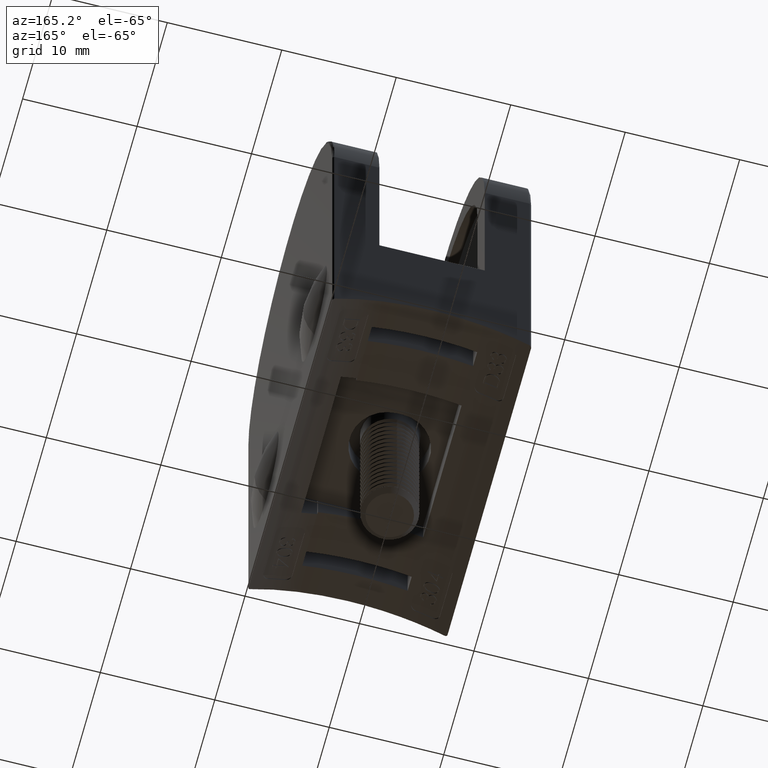
[diagram: clean part render]
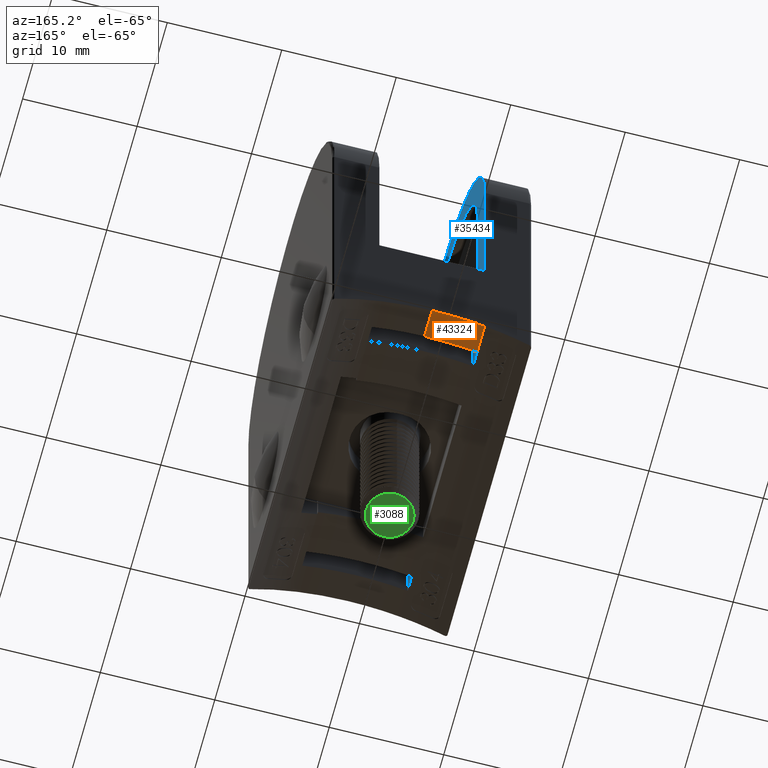
[diagram: same view with three faces highlighted in distinct colors, each labeled with its STEP entity id]
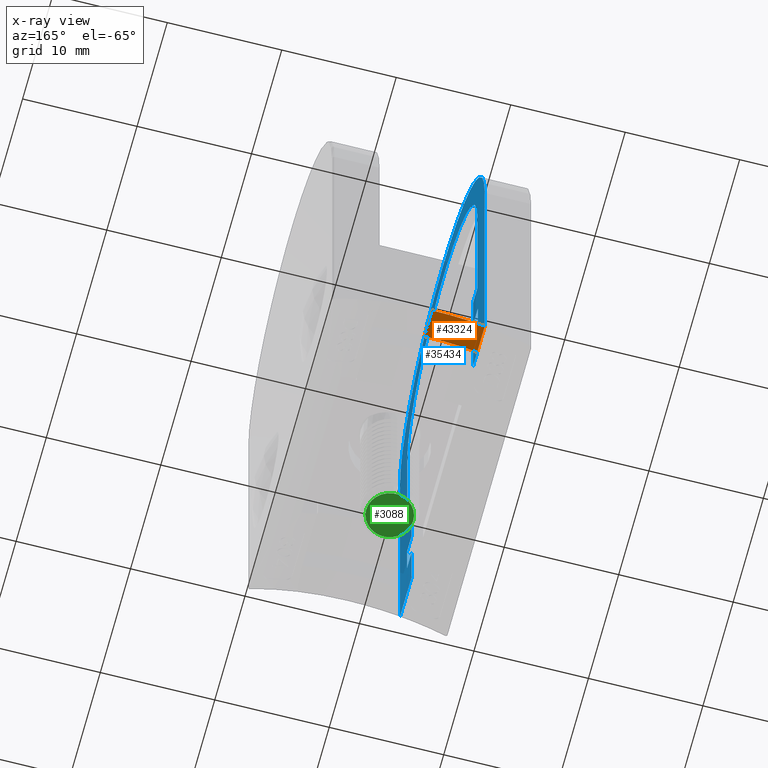
[diagram: x-ray of the same camera — body ghosted, the three highlighted faces saturated]
A machine part, auxiliary view with three faces highlighted in distinct colors.
The next image is the same camera in x-ray (body ghosted, the three faces saturated) — at least one of them is partly hidden behind the body in this view.
Their STEP definitions:

[orange] entity #43324 — the highlighted cylindrical surface (partial cylindrical patch) has radius 16.85 mm, axis along (0, -1, -0).
#266 = FACE_OUTER_BOUND ( 'NONE', #48528, .T. ) ;
#4079 = VECTOR ( 'NONE', #20886, 1000.000000000000000 ) ;
#4714 = CARTESIAN_POINT ( 'NONE',  ( 8.699999999999997500, -13.99999999999999800, -3.469446951953614200E-015 ) ) ;
#7329 = DIRECTION ( 'NONE',  ( -0.0000000000000000000, 1.000000000000000000, -0.0000000000000000000 ) ) ;
#11499 = CIRCLE ( 'NONE', #34457, 16.84999999999999400 ) ;
#11938 = CARTESIAN_POINT ( 'NONE',  ( 13.29999999999999900, -13.99999999999999800, -0.6400493523268311300 ) ) ;
#14214 = CARTESIAN_POINT ( 'NONE',  ( 8.699999999999997500, -13.99999999999999800, -16.85000000000000100 ) ) ;
#14636 = DIRECTION ( 'NONE',  ( 0.0000000000000000000, 1.000000000000000000, 0.0000000000000000000 ) ) ;
#16032 = VERTEX_POINT ( 'NONE', #4714 ) ;
#17247 = AXIS2_PLACEMENT_3D ( 'NONE', #14214, #14636, #38416 ) ;
#18910 = EDGE_CURVE ( 'NONE', #48161, #35962, #37407, .T. ) ;
#20465 = CARTESIAN_POINT ( 'NONE',  ( 13.29999999999999900, -11.49999999999999500, -0.6400493523268275800 ) ) ;
#20741 = DIRECTION ( 'NONE',  ( 0.0000000000000000000, -1.000000000000000000, -3.304235192336777500E-016 ) ) ;
#20886 = DIRECTION ( 'NONE',  ( -0.0000000000000000000, 1.000000000000000000, -0.0000000000000000000 ) ) ;
#27255 = AXIS2_PLACEMENT_3D ( 'NONE', #60171, #7329, #50680 ) ;
#27881 = VERTEX_POINT ( 'NONE', #40253 ) ;
#31728 = DIRECTION ( 'NONE',  ( -0.0000000000000000000, 1.000000000000000000, -0.0000000000000000000 ) ) ;
#32076 = CARTESIAN_POINT ( 'NONE',  ( 13.29999999999999900, -13.99999999999999800, -0.6400493523268275800 ) ) ;
#32791 = EDGE_CURVE ( 'NONE', #16032, #48161, #38018, .T. ) ;
#33729 = ORIENTED_EDGE ( 'NONE', *, *, #32791, .F. ) ;
#34457 = AXIS2_PLACEMENT_3D ( 'NONE', #37246, #20741, #52951 ) ;
#34773 = CYLINDRICAL_SURFACE ( 'NONE', #27255, 16.84999999999999800 ) ;
#35962 = VERTEX_POINT ( 'NONE', #20465 ) ;
#37246 = CARTESIAN_POINT ( 'NONE',  ( 8.699999999999997500, -11.49999999999998900, -16.85000000000000100 ) ) ;
#37407 = LINE ( 'NONE', #11938, #45680 ) ;
#38018 = CIRCLE ( 'NONE', #17247, 16.84999999999999800 ) ;
#38416 = DIRECTION ( 'NONE',  ( 0.0000000000000000000, 0.0000000000000000000, 1.000000000000000000 ) ) ;
#38621 = ORIENTED_EDGE ( 'NONE', *, *, #18910, .F. ) ;
#40035 = CARTESIAN_POINT ( 'NONE',  ( 8.699999999999997500, -13.99999999999999800, -3.469446951953614200E-015 ) ) ;
#40101 = LINE ( 'NONE', #40035, #4079 ) ;
#40253 = CARTESIAN_POINT ( 'NONE',  ( 8.699999999999997500, -11.49999999999999500, -3.469446951953614200E-015 ) ) ;
#40864 = EDGE_CURVE ( 'NONE', #35962, #27881, #11499, .T. ) ;
#42133 = EDGE_CURVE ( 'NONE', #16032, #27881, #40101, .T. ) ;
#43324 = ADVANCED_FACE ( 'NONE', ( #266 ), #34773, .F. ) ;
#45680 = VECTOR ( 'NONE', #31728, 1000.000000000000000 ) ;
#48161 = VERTEX_POINT ( 'NONE', #32076 ) ;
#48528 = EDGE_LOOP ( 'NONE', ( #33729, #55350, #62089, #38621 ) ) ;
#50680 = DIRECTION ( 'NONE',  ( 0.0000000000000000000, 0.0000000000000000000, 1.000000000000000000 ) ) ;
#52951 = DIRECTION ( 'NONE',  ( 0.0000000000000000000, 3.088528443875621800E-016, -1.000000000000000000 ) ) ;
#55350 = ORIENTED_EDGE ( 'NONE', *, *, #42133, .T. ) ;
#60171 = CARTESIAN_POINT ( 'NONE',  ( 8.699999999999997500, -13.99999999999999800, -16.85000000000000100 ) ) ;
#62089 = ORIENTED_EDGE ( 'NONE', *, *, #40864, .F. ) ;

[blue] entity #35434 — the highlighted planar face has unit normal (1, 0, 0).
#1250 = LINE ( 'NONE', #19534, #30587 ) ;
#1444 = ORIENTED_EDGE ( 'NONE', *, *, #31380, .F. ) ;
#1975 = CIRCLE ( 'NONE', #14606, 13.99999999999999500 ) ;
#2635 = CARTESIAN_POINT ( 'NONE',  ( 4.100000000000000500, 13.99999999999999500, -0.6400493523268275800 ) ) ;
#3091 = DIRECTION ( 'NONE',  ( 1.000000000000000000, 0.0000000000000000000, 0.0000000000000000000 ) ) ;
#3123 = CARTESIAN_POINT ( 'NONE',  ( 4.099999999999999600, 0.0000000000000000000, 25.99999999999999600 ) ) ;
#3590 = EDGE_CURVE ( 'NONE', #24315, #6499, #54759, .T. ) ;
#3665 = EDGE_CURVE ( 'NONE', #17124, #35898, #26105, .T. ) ;
#3826 = CARTESIAN_POINT ( 'NONE',  ( 4.099999999999999600, -11.70000000000000300, 4.299999999999993600 ) ) ;
#4039 = DIRECTION ( 'NONE',  ( 0.0000000000000000000, 1.000000000000000000, 0.0000000000000000000 ) ) ;
#4090 = EDGE_CURVE ( 'NONE', #43868, #57689, #34397, .T. ) ;
#4570 = ORIENTED_EDGE ( 'NONE', *, *, #42971, .F. ) ;
#4955 = VERTEX_POINT ( 'NONE', #19482 ) ;
#5756 = DIRECTION ( 'NONE',  ( 0.0000000000000000000, -1.000000000000000000, 0.0000000000000000000 ) ) ;
#6499 = VERTEX_POINT ( 'NONE', #60566 ) ;
#6500 = VERTEX_POINT ( 'NONE', #7711 ) ;
#6981 = ORIENTED_EDGE ( 'NONE', *, *, #47739, .F. ) ;
#7711 = CARTESIAN_POINT ( 'NONE',  ( 4.099999999999999600, 0.0000000000000000000, 39.99999999999999300 ) ) ;
#7731 = VERTEX_POINT ( 'NONE', #2635 ) ;
#7935 = DIRECTION ( 'NONE',  ( 0.0000000000000000000, 0.0000000000000000000, -1.000000000000000000 ) ) ;
#9139 = AXIS2_PLACEMENT_3D ( 'NONE', #19498, #10259, #44112 ) ;
#9703 = CARTESIAN_POINT ( 'NONE',  ( 4.099999999999999600, 10.14999999999999900, 10.49999999999999600 ) ) ;
#9716 = VERTEX_POINT ( 'NONE', #32903 ) ;
#10201 = CARTESIAN_POINT ( 'NONE',  ( 4.099999999999999600, -11.70000000000000300, 7.599999999999995200 ) ) ;
#10259 = DIRECTION ( 'NONE',  ( 1.000000000000000000, 0.0000000000000000000, 0.0000000000000000000 ) ) ;
#10336 = EDGE_CURVE ( 'NONE', #37130, #17124, #61037, .T. ) ;
#10449 = VERTEX_POINT ( 'NONE', #41562 ) ;
#10602 = LINE ( 'NONE', #53331, #19628 ) ;
#12691 = ORIENTED_EDGE ( 'NONE', *, *, #34003, .F. ) ;
#12857 = DIRECTION ( 'NONE',  ( 1.000000000000000000, 0.0000000000000000000, 0.0000000000000000000 ) ) ;
#13024 = ORIENTED_EDGE ( 'NONE', *, *, #62265, .F. ) ;
#13636 = VERTEX_POINT ( 'NONE', #39013 ) ;
#13827 = CARTESIAN_POINT ( 'NONE',  ( 4.099999999999999600, -10.14999999999999900, -0.6400493523268275800 ) ) ;
#13881 = ORIENTED_EDGE ( 'NONE', *, *, #37376, .F. ) ;
#14606 = AXIS2_PLACEMENT_3D ( 'NONE', #3123, #36720, #7935 ) ;
#15220 = CARTESIAN_POINT ( 'NONE',  ( 4.099999999999999600, 10.14999999999999900, -0.6400493523268275800 ) ) ;
#15399 = CARTESIAN_POINT ( 'NONE',  ( 4.099999999999999600, 11.70000000000000300, 4.299999999999998000 ) ) ;
#15487 = AXIS2_PLACEMENT_3D ( 'NONE', #31877, #3091, #41714 ) ;
#15784 = VECTOR ( 'NONE', #46001, 1000.000000000000000 ) ;
#15935 = CIRCLE ( 'NONE', #15487, 11.59999999999999600 ) ;
#16201 = ORIENTED_EDGE ( 'NONE', *, *, #53078, .F. ) ;
#16544 = DIRECTION ( 'NONE',  ( 0.0000000000000000000, 1.239088197126291300E-016, 1.000000000000000000 ) ) ;
#16571 = CARTESIAN_POINT ( 'NONE',  ( 4.099999999999999600, 10.14999999999999900, 4.299999999999998000 ) ) ;
#16593 = LINE ( 'NONE', #50390, #45264 ) ;
#16746 = ORIENTED_EDGE ( 'NONE', *, *, #58205, .F. ) ;
#17045 = DIRECTION ( 'NONE',  ( 0.0000000000000000000, 0.0000000000000000000, -1.000000000000000000 ) ) ;
#17124 = VERTEX_POINT ( 'NONE', #47299 ) ;
#17303 = ORIENTED_EDGE ( 'NONE', *, *, #3590, .F. ) ;
#18782 = DIRECTION ( 'NONE',  ( -0.0000000000000000000, -0.0000000000000000000, 1.000000000000000000 ) ) ;
#19482 = CARTESIAN_POINT ( 'NONE',  ( 4.099999999999999600, -13.99999999999999500, 25.99999999999999600 ) ) ;
#19498 = CARTESIAN_POINT ( 'NONE',  ( 4.099999999999999600, 0.0000000000000000000, 25.99999999999999600 ) ) ;
#19534 = CARTESIAN_POINT ( 'NONE',  ( 4.099999999999999600, 13.99999999999999500, 25.99999999999999600 ) ) ;
#19628 = VECTOR ( 'NONE', #18782, 1000.000000000000000 ) ;
#20568 = DIRECTION ( 'NONE',  ( -0.0000000000000000000, -0.0000000000000000000, -1.000000000000000000 ) ) ;
#20703 = LINE ( 'NONE', #37160, #60686 ) ;
#21171 = VERTEX_POINT ( 'NONE', #15399 ) ;
#21381 = VECTOR ( 'NONE', #60276, 1000.000000000000000 ) ;
#21897 = ORIENTED_EDGE ( 'NONE', *, *, #25686, .F. ) ;
#21994 = EDGE_CURVE ( 'NONE', #36504, #21171, #25172, .T. ) ;
#22419 = DIRECTION ( 'NONE',  ( -0.0000000000000000000, -1.000000000000000000, -0.0000000000000000000 ) ) ;
#23359 = DIRECTION ( 'NONE',  ( -0.0000000000000000000, -0.0000000000000000000, 1.000000000000000000 ) ) ;
#24123 = CARTESIAN_POINT ( 'NONE',  ( 4.099999999999999600, 11.70000000000000300, 7.599999999999996100 ) ) ;
#24315 = VERTEX_POINT ( 'NONE', #45472 ) ;
#24343 = VERTEX_POINT ( 'NONE', #35809 ) ;
#24454 = EDGE_CURVE ( 'NONE', #24343, #24315, #48380, .T. ) ;
#25172 = LINE ( 'NONE', #50567, #21381 ) ;
#25186 = VECTOR ( 'NONE', #41107, 1000.000000000000000 ) ;
#25686 = EDGE_CURVE ( 'NONE', #45719, #13636, #41023, .T. ) ;
#26105 = LINE ( 'NONE', #28275, #41110 ) ;
#26643 = CARTESIAN_POINT ( 'NONE',  ( 4.099999999999999600, -11.59999999999999400, 12.00000000000000200 ) ) ;
#26798 = CARTESIAN_POINT ( 'NONE',  ( 4.099999999999999600, 0.0000000000000000000, 25.99999999999999600 ) ) ;
#26865 = EDGE_CURVE ( 'NONE', #61684, #6500, #48495, .T. ) ;
#28275 = CARTESIAN_POINT ( 'NONE',  ( 4.099999999999999600, -10.14999999999999900, 7.599999999999995200 ) ) ;
#28383 = CARTESIAN_POINT ( 'NONE',  ( 4.099999999999999600, -11.70000000000000300, 7.599999999999995200 ) ) ;
#28949 = LINE ( 'NONE', #28383, #47766 ) ;
#29170 = VECTOR ( 'NONE', #60306, 1000.000000000000000 ) ;
#29685 = ORIENTED_EDGE ( 'NONE', *, *, #24454, .F. ) ;
#29957 = CARTESIAN_POINT ( 'NONE',  ( 4.099999999999999600, -11.70000000000000300, 4.299999999999993600 ) ) ;
#30329 = CARTESIAN_POINT ( 'NONE',  ( 4.099999999999999600, -10.14999999999999900, 11.99999999999999600 ) ) ;
#30378 = LINE ( 'NONE', #49294, #47687 ) ;
#30587 = VECTOR ( 'NONE', #44138, 1000.000000000000000 ) ;
#30855 = ORIENTED_EDGE ( 'NONE', *, *, #4090, .F. ) ;
#31230 = PLANE ( 'NONE',  #44386 ) ;
#31353 = LINE ( 'NONE', #45914, #58520 ) ;
#31368 = VECTOR ( 'NONE', #4039, 1000.000000000000000 ) ;
#31380 = EDGE_CURVE ( 'NONE', #47875, #36504, #16593, .T. ) ;
#31605 = ORIENTED_EDGE ( 'NONE', *, *, #21994, .F. ) ;
#31740 = CARTESIAN_POINT ( 'NONE',  ( 4.099999999999999600, 11.59999999999999600, 25.99999999999999600 ) ) ;
#31877 = CARTESIAN_POINT ( 'NONE',  ( 4.099999999999999600, 0.0000000000000000000, 25.99999999999999600 ) ) ;
#32573 = DIRECTION ( 'NONE',  ( 0.0000000000000000000, -1.000000000000000000, 0.0000000000000000000 ) ) ;
#32826 = ORIENTED_EDGE ( 'NONE', *, *, #3665, .F. ) ;
#32903 = CARTESIAN_POINT ( 'NONE',  ( 4.099999999999999600, -11.59999999999999400, 12.00000000000000200 ) ) ;
#33365 = ORIENTED_EDGE ( 'NONE', *, *, #26865, .T. ) ;
#34003 = EDGE_CURVE ( 'NONE', #35898, #43868, #28949, .T. ) ;
#34397 = LINE ( 'NONE', #3826, #31368 ) ;
#34494 = ORIENTED_EDGE ( 'NONE', *, *, #42320, .F. ) ;
#34920 = CARTESIAN_POINT ( 'NONE',  ( 4.099999999999999600, -13.99999999999999500, -3.469446951953614200E-015 ) ) ;
#35434 = ADVANCED_FACE ( 'NONE', ( #48803 ), #31230, .T. ) ;
#35809 = CARTESIAN_POINT ( 'NONE',  ( 4.099999999999999600, 10.14999999999999900, 7.599999999999998800 ) ) ;
#35898 = VERTEX_POINT ( 'NONE', #10201 ) ;
#36301 = VECTOR ( 'NONE', #23359, 1000.000000000000000 ) ;
#36348 = CARTESIAN_POINT ( 'NONE',  ( 4.099999999999999600, -10.14999999999999900, 10.49999999999999500 ) ) ;
#36504 = VERTEX_POINT ( 'NONE', #16571 ) ;
#36720 = DIRECTION ( 'NONE',  ( 1.000000000000000000, 0.0000000000000000000, 0.0000000000000000000 ) ) ;
#37130 = VERTEX_POINT ( 'NONE', #30329 ) ;
#37160 = CARTESIAN_POINT ( 'NONE',  ( 4.099999999999999600, -13.99999999999999500, -0.6400493523268275800 ) ) ;
#37376 = EDGE_CURVE ( 'NONE', #57689, #45719, #31353, .T. ) ;
#38290 = EDGE_CURVE ( 'NONE', #6500, #4955, #1975, .T. ) ;
#38933 = LINE ( 'NONE', #34920, #54813 ) ;
#39013 = CARTESIAN_POINT ( 'NONE',  ( 4.100000000000000500, -13.99999999999999500, -0.6400493523268275800 ) ) ;
#39353 = ORIENTED_EDGE ( 'NONE', *, *, #56370, .T. ) ;
#40252 = ORIENTED_EDGE ( 'NONE', *, *, #38290, .T. ) ;
#41023 = LINE ( 'NONE', #44411, #46295 ) ;
#41107 = DIRECTION ( 'NONE',  ( -0.0000000000000000000, 1.239088197126291300E-016, -1.000000000000000000 ) ) ;
#41110 = VECTOR ( 'NONE', #56688, 1000.000000000000000 ) ;
#41199 = CARTESIAN_POINT ( 'NONE',  ( 4.099999999999999600, 13.99999999999999500, 25.99999999999999600 ) ) ;
#41562 = CARTESIAN_POINT ( 'NONE',  ( 4.099999999999999600, -11.59999999999999600, 25.99999999999999600 ) ) ;
#41714 = DIRECTION ( 'NONE',  ( 0.0000000000000000000, 0.0000000000000000000, -1.000000000000000000 ) ) ;
#42320 = EDGE_CURVE ( 'NONE', #9716, #37130, #30378, .T. ) ;
#42971 = EDGE_CURVE ( 'NONE', #57130, #10449, #15935, .T. ) ;
#43868 = VERTEX_POINT ( 'NONE', #29957 ) ;
#43989 = LINE ( 'NONE', #26643, #25186 ) ;
#44112 = DIRECTION ( 'NONE',  ( 0.0000000000000000000, 0.0000000000000000000, -1.000000000000000000 ) ) ;
#44138 = DIRECTION ( 'NONE',  ( -0.0000000000000000000, -0.0000000000000000000, 1.000000000000000000 ) ) ;
#44386 = AXIS2_PLACEMENT_3D ( 'NONE', #26798, #12857, #60292 ) ;
#44411 = CARTESIAN_POINT ( 'NONE',  ( 4.099999999999999600, -13.99999999999999500, -0.6400493523268275800 ) ) ;
#45264 = VECTOR ( 'NONE', #55038, 1000.000000000000000 ) ;
#45472 = CARTESIAN_POINT ( 'NONE',  ( 4.099999999999999600, 10.14999999999999900, 12.00000000000000000 ) ) ;
#45719 = VERTEX_POINT ( 'NONE', #13827 ) ;
#45914 = CARTESIAN_POINT ( 'NONE',  ( 4.099999999999999600, -10.14999999999999900, 4.299999999999993600 ) ) ;
#45926 = CARTESIAN_POINT ( 'NONE',  ( 4.099999999999999600, 11.59999999999999400, 12.00000000000000200 ) ) ;
#46001 = DIRECTION ( 'NONE',  ( 0.0000000000000000000, 0.0000000000000000000, -1.000000000000000000 ) ) ;
#46120 = VECTOR ( 'NONE', #16544, 1000.000000000000000 ) ;
#46295 = VECTOR ( 'NONE', #5756, 1000.000000000000000 ) ;
#46842 = LINE ( 'NONE', #59789, #46120 ) ;
#47299 = CARTESIAN_POINT ( 'NONE',  ( 4.099999999999999600, -10.14999999999999900, 7.599999999999995200 ) ) ;
#47432 = EDGE_CURVE ( 'NONE', #7731, #61684, #1250, .T. ) ;
#47687 = VECTOR ( 'NONE', #49503, 1000.000000000000000 ) ;
#47739 = EDGE_CURVE ( 'NONE', #7731, #47875, #20703, .T. ) ;
#47766 = VECTOR ( 'NONE', #52807, 1000.000000000000000 ) ;
#47841 = EDGE_LOOP ( 'NONE', ( #6981, #61745, #33365, #40252, #39353, #21897, #13881, #30855, #12691, #32826, #52902, #34494, #16746, #4570, #49817, #17303, #29685, #13024, #16201, #31605, #1444 ) ) ;
#47875 = VERTEX_POINT ( 'NONE', #15220 ) ;
#48380 = LINE ( 'NONE', #9703, #36301 ) ;
#48495 = CIRCLE ( 'NONE', #9139, 13.99999999999999500 ) ;
#48803 = FACE_OUTER_BOUND ( 'NONE', #47841, .T. ) ;
#49294 = CARTESIAN_POINT ( 'NONE',  ( 4.099999999999999600, 11.59999999999999400, 12.00000000000000200 ) ) ;
#49503 = DIRECTION ( 'NONE',  ( -0.0000000000000000000, 1.000000000000000000, -0.0000000000000000000 ) ) ;
#49817 = ORIENTED_EDGE ( 'NONE', *, *, #50107, .F. ) ;
#50107 = EDGE_CURVE ( 'NONE', #6499, #57130, #46842, .T. ) ;
#50390 = CARTESIAN_POINT ( 'NONE',  ( 4.099999999999999600, 10.14999999999999900, 4.299999999999996300 ) ) ;
#50567 = CARTESIAN_POINT ( 'NONE',  ( 4.099999999999999600, 11.70000000000000300, 4.299999999999996300 ) ) ;
#51272 = CARTESIAN_POINT ( 'NONE',  ( 4.099999999999999600, 10.14999999999999900, 7.599999999999997000 ) ) ;
#52149 = VECTOR ( 'NONE', #22419, 1000.000000000000000 ) ;
#52807 = DIRECTION ( 'NONE',  ( 0.0000000000000000000, 0.0000000000000000000, -1.000000000000000000 ) ) ;
#52902 = ORIENTED_EDGE ( 'NONE', *, *, #10336, .F. ) ;
#53078 = EDGE_CURVE ( 'NONE', #21171, #53379, #10602, .T. ) ;
#53331 = CARTESIAN_POINT ( 'NONE',  ( 4.099999999999999600, 11.70000000000000300, 7.599999999999997000 ) ) ;
#53379 = VERTEX_POINT ( 'NONE', #24123 ) ;
#54759 = LINE ( 'NONE', #45926, #29170 ) ;
#54813 = VECTOR ( 'NONE', #20568, 1000.000000000000000 ) ;
#55038 = DIRECTION ( 'NONE',  ( -0.0000000000000000000, -0.0000000000000000000, 1.000000000000000000 ) ) ;
#56370 = EDGE_CURVE ( 'NONE', #4955, #13636, #38933, .T. ) ;
#56662 = LINE ( 'NONE', #51272, #52149 ) ;
#56688 = DIRECTION ( 'NONE',  ( 0.0000000000000000000, -1.000000000000000000, 0.0000000000000000000 ) ) ;
#57130 = VERTEX_POINT ( 'NONE', #31740 ) ;
#57689 = VERTEX_POINT ( 'NONE', #61769 ) ;
#58205 = EDGE_CURVE ( 'NONE', #10449, #9716, #43989, .T. ) ;
#58520 = VECTOR ( 'NONE', #17045, 1000.000000000000000 ) ;
#59789 = CARTESIAN_POINT ( 'NONE',  ( 4.099999999999999600, 11.59999999999999400, 12.00000000000000200 ) ) ;
#60276 = DIRECTION ( 'NONE',  ( -0.0000000000000000000, 1.000000000000000000, -0.0000000000000000000 ) ) ;
#60292 = DIRECTION ( 'NONE',  ( 0.0000000000000000000, 0.0000000000000000000, -1.000000000000000000 ) ) ;
#60306 = DIRECTION ( 'NONE',  ( -0.0000000000000000000, 1.000000000000000000, -0.0000000000000000000 ) ) ;
#60566 = CARTESIAN_POINT ( 'NONE',  ( 4.099999999999999600, 11.59999999999999400, 12.00000000000000200 ) ) ;
#60686 = VECTOR ( 'NONE', #32573, 1000.000000000000000 ) ;
#61037 = LINE ( 'NONE', #36348, #15784 ) ;
#61684 = VERTEX_POINT ( 'NONE', #41199 ) ;
#61745 = ORIENTED_EDGE ( 'NONE', *, *, #47432, .T. ) ;
#61769 = CARTESIAN_POINT ( 'NONE',  ( 4.099999999999999600, -10.14999999999999900, 4.299999999999993600 ) ) ;
#62265 = EDGE_CURVE ( 'NONE', #53379, #24343, #56662, .T. ) ;

[green] entity #3088 — the highlighted planar face has unit normal (0, 0, -1).
#3088 = ADVANCED_FACE ( 'NONE', ( #4303 ), #21108, .T. ) ;
#4303 = FACE_OUTER_BOUND ( 'NONE', #18788, .T. ) ;
#5823 = EDGE_CURVE ( 'NONE', #7962, #29454, #33515, .T. ) ;
#6412 = CIRCLE ( 'NONE', #33206, 2.055000000000000200 ) ;
#7062 = DIRECTION ( 'NONE',  ( 0.0000000000000000000, 0.0000000000000000000, -1.000000000000000000 ) ) ;
#7144 = CARTESIAN_POINT ( 'NONE',  ( 19.50000000000000400, 2.789133085058090200E-016, -2.055000000000000200 ) ) ;
#7420 = ORIENTED_EDGE ( 'NONE', *, *, #21139, .F. ) ;
#7679 = DIRECTION ( 'NONE',  ( 1.000000000000000000, 0.0000000000000000000, 0.0000000000000000000 ) ) ;
#7962 = VERTEX_POINT ( 'NONE', #22182 ) ;
#8044 = DIRECTION ( 'NONE',  ( -1.000000000000000000, -0.0000000000000000000, -0.0000000000000000000 ) ) ;
#12206 = ORIENTED_EDGE ( 'NONE', *, *, #5823, .F. ) ;
#18788 = EDGE_LOOP ( 'NONE', ( #12206, #7420 ) ) ;
#19493 = AXIS2_PLACEMENT_3D ( 'NONE', #57809, #7679, #7062 ) ;
#19857 = CARTESIAN_POINT ( 'NONE',  ( 19.50000000000000400, 0.0000000000000000000, 0.0000000000000000000 ) ) ;
#21108 = PLANE ( 'NONE',  #19493 ) ;
#21139 = EDGE_CURVE ( 'NONE', #29454, #7962, #6412, .T. ) ;
#21690 = CARTESIAN_POINT ( 'NONE',  ( 19.50000000000000400, 0.0000000000000000000, 0.0000000000000000000 ) ) ;
#22182 = CARTESIAN_POINT ( 'NONE',  ( 19.50000000000000400, 0.0000000000000000000, 2.055000000000000200 ) ) ;
#25148 = DIRECTION ( 'NONE',  ( 0.0000000000000000000, 0.0000000000000000000, 1.000000000000000000 ) ) ;
#29454 = VERTEX_POINT ( 'NONE', #7144 ) ;
#33206 = AXIS2_PLACEMENT_3D ( 'NONE', #19857, #48704, #25148 ) ;
#33515 = CIRCLE ( 'NONE', #43014, 2.055000000000000200 ) ;
#43014 = AXIS2_PLACEMENT_3D ( 'NONE', #21690, #8044, #60265 ) ;
#48704 = DIRECTION ( 'NONE',  ( -1.000000000000000000, -0.0000000000000000000, -0.0000000000000000000 ) ) ;
#57809 = CARTESIAN_POINT ( 'NONE',  ( 19.50000000000000000, 2.055000000000000200, 0.0000000000000000000 ) ) ;
#60265 = DIRECTION ( 'NONE',  ( 0.0000000000000000000, 0.0000000000000000000, 1.000000000000000000 ) ) ;